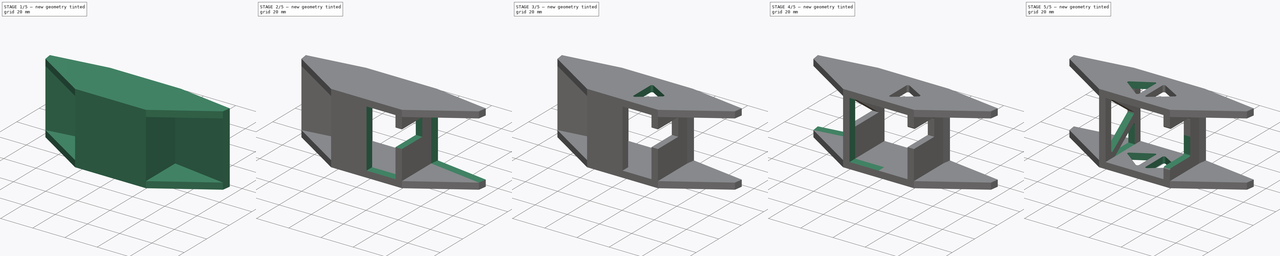
[diagram: build sequence overview — one tinted view per stage of 5, left to right]
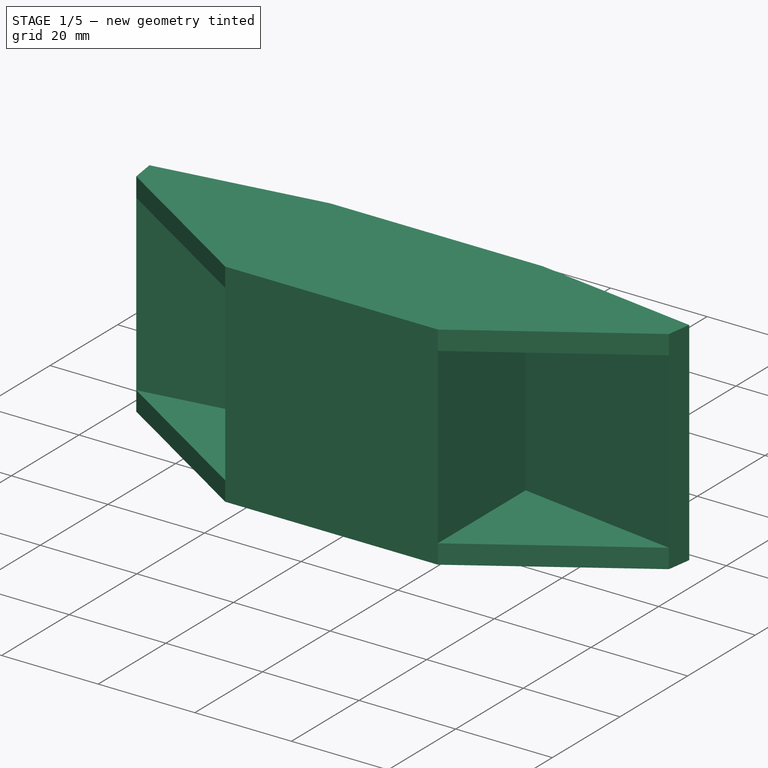
[diagram: stage 1 of 5 — iso view after this stage's code; geometry added in this stage tinted green]
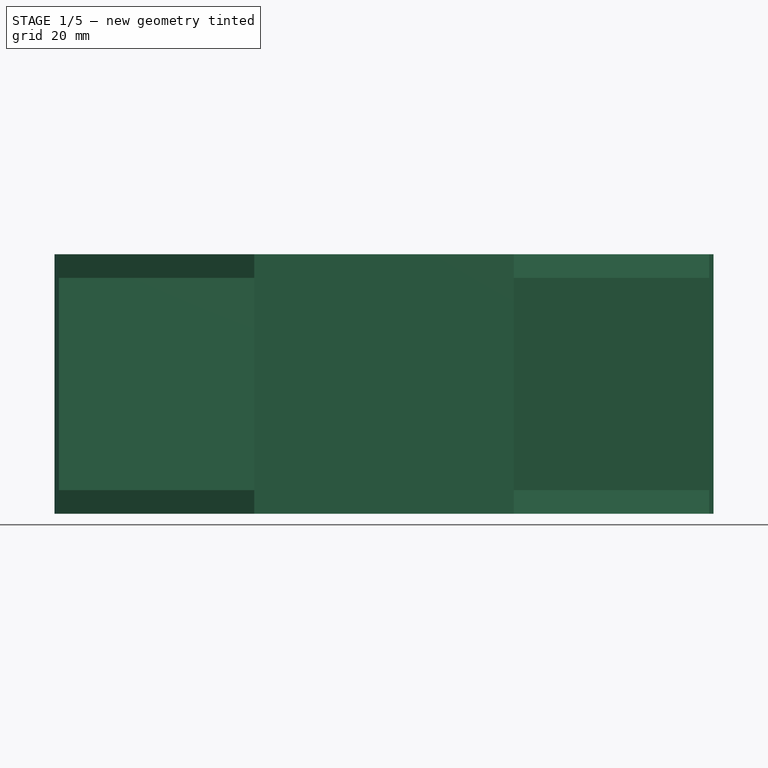
[diagram: stage 1 of 5 — front view after this stage's code; geometry added in this stage tinted green]
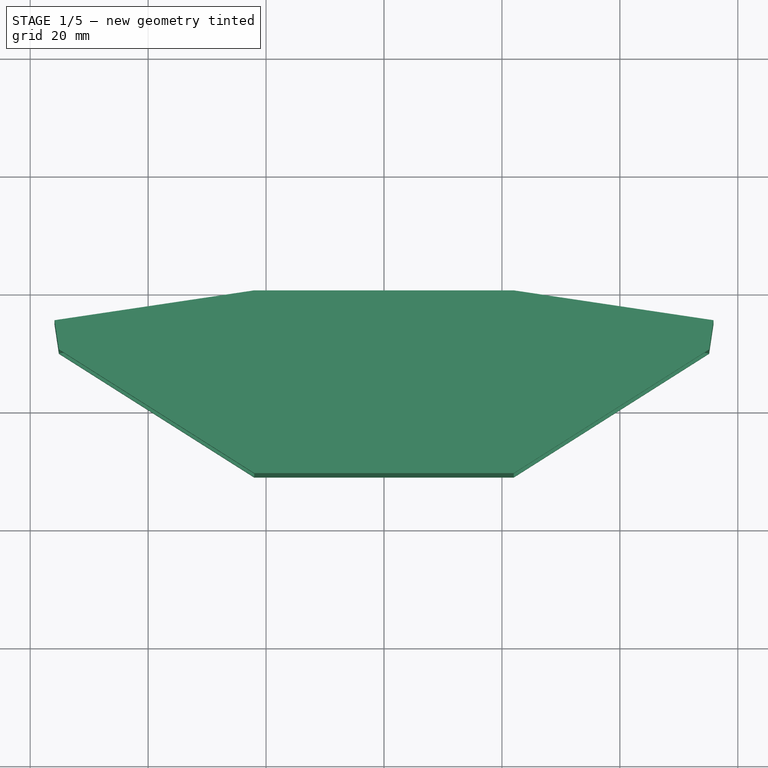
[diagram: stage 1 of 5 — top view after this stage's code; geometry added in this stage tinted green]
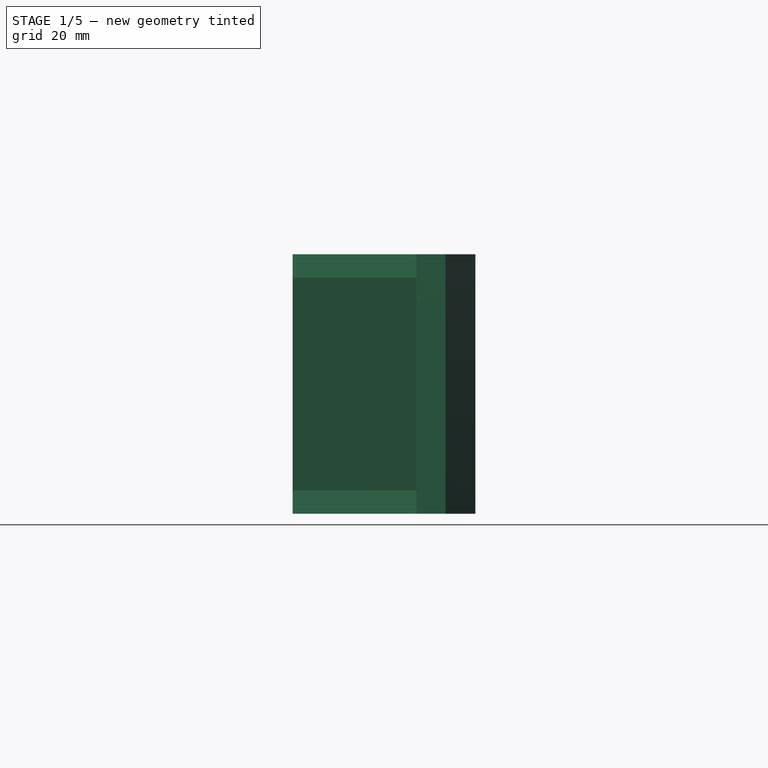
[diagram: stage 1 of 5 — right view after this stage's code; geometry added in this stage tinted green]
FCSTD DOCUMENT  (FreeCAD 0.20R29177 +426 (Git))
Label: midRowRack
License: All rights reserved
LicenseURL: http://en.wikipedia.org/wiki/All_rights_reserved
objects: Sketcher::SketchObject×10, PartDesign::Mirrored×8, PartDesign::Pocket×5, PartDesign::CoordinateSystem×4, PartDesign::Fillet×4, PartDesign::Pad×2, PartDesign::MultiTransform×2, Spreadsheet::Sheet×1, PartDesign::PolarPattern×1, PartDesign::Body×1
note: 48 computed .brp shape members not serialized (recipe doc carries the construction recipe); baked Part::Feature solids carry a one-line shape summary decoded from their .brp

FEATURE [Spreadsheet::Sheet] Spreadsheet  label="props"
  cells = A1=variable; B1=unit; C1=value; D1=min value; E1=typical value; F1=max value; A2=pan angle; B2=degree; C2(panAngle)=8.5; D2=0; A3=cell diameter; B3=mm; C3(cellDiam)=40; A4=side plate left width; B4=mm; C4(sidePlateLeftWidth)=18; E4==cellDiam / 2 - ribThick / 2; A5=side plate right (USB side) width; B5=mm; C5(sidePlateRightWidth)=15.5; E5=15.5; A6=center plate width; B6=mm; C6(centerPlateWidth)=36; E6==cellDiam - ribThick; A7=plate height; B7=mm; C7(plateHeight)=36; E7==cellDiam - ribThick; A8=rack thicnkess; B8=mm; C8(rackThick)=31; A9=plate thickness; B9=mm; C9(plateThick)=5; A10=rib thickness; B10=mm; C10(ribThick)=4; A11=usb extended thickness; B11=mm; C11(usbExtThick)=5.5; A12=usb extended length; B12=mm; C12(usbExtLength)=17; A13=usb thickness; B13=mm; C13(usbThick)=9; A14=usb width; B14=mm; C14(usbWidth)=22; A15=usb hole height; B15=mm; C15(usbHoleHeight)=13; D15==usbThick - usbExtThick + 1 + standoffLength - 1.5; A16=standoff length; B16=mm; C16(standoffLength)=8; A17=center camera back length; B17=mm; C17(cenCamBack)==rackThick - plateThick; D17==usbThick - usbExtThick + 1 + standoffLength - 1.5 + plateThick + usbExtLength * tan(panAngle) + 0.4
FEATURE [Sketcher::SketchObject] Sketch  label="baseSk"
  FullyConstrained = true
  MapMode = 5
  Support = -> [XY_Plane]
  expr: Constraints[19] = <<props>>.plateThick
  expr: Constraints[20] = <<props>>.plateThick
  expr: Constraints[21] = <<props>>.cenCamBack
  expr: Constraints[22] = <<props>>.cellDiam / 2 - <<props>>.ribThick / 2
  expr: Constraints[23] = <<props>>.ribThick
  expr: Constraints[24] = 90 - <<props>>.panAngle
  expr: Constraints[26] = <<props>>.sidePlateLeftWidth + <<props>>.sidePlateRightWidth
  sketch-geometry (9):
    g0: LineSegment StartX=0 StartY=-26 StartZ=0 EndX=0 EndY=-31 EndZ=0
    g1: LineSegment StartX=0 StartY=-31 StartZ=0 EndX=22 EndY=-31 EndZ=0
    g2: LineSegment StartX=22 StartY=-31 StartZ=0 EndX=22 EndY=-5.05553 EndZ=0
    g3: LineSegment StartX=22 StartY=-5.05553 StartZ=0 EndX=55.132 EndY=-10.0071 EndZ=0
    g4: LineSegment StartX=55.132 StartY=-10.0071 StartZ=0 EndX=55.8711 EndY=-5.06207 EndZ=0
    g5: LineSegment StartX=55.8711 StartY=-5.06207 StartZ=0 EndX=22 EndY=9e-16 EndZ=0
    g6: LineSegment StartX=22 StartY=9e-16 StartZ=0 EndX=18 EndY=9e-16 EndZ=0
    g7: LineSegment StartX=18 StartY=9e-16 StartZ=0 EndX=18 EndY=-26 EndZ=0
    g8: LineSegment StartX=18 StartY=-26 StartZ=0 EndX=0 EndY=-26 EndZ=0
  constraints (27):
    c: PointOnObject(g0,g-2)
    c: Vertical(g0)
    c: Coincident(g0,g1)
    c: Horizontal(g1)
    c: Coincident(g1,g2)
    c: Vertical(g2)
    c: Coincident(g2,g3)
    c: Coincident(g3,g4)
    c: Coincident(g4,g5)
    c: Coincident(g5,g6)
    c: PointOnObject(g6,g-1)
    c: Horizontal(g6)
    c: Coincident(g6,g7)
    c: Vertical(g7)
    c: Coincident(g7,g8)
    c: Coincident(g8,g0)
    c: Horizontal(g8)
    c: Perpendicular(g5,g4)
    c: Parallel(g5,g3)
    c: Distance(g0) = 5
    c: Distance(g4) = 5
    c: Distance(g7) = 26
    c: Distance(g8) = 18
    c: Distance(g2,g7) = 4
    c: Angle(g2,g5) = 1.42244
    c: Vertical(g2,g5)
    c: Distance(g3) = 33.5
FEATURE [PartDesign::Pad] Pad  label="base"
  Direction = (0,0,1)
  Length = 36
  Length2 = 10
  Midplane = true
  Profile = -> Sketch
  ReferenceAxis = -> Sketch [N_Axis]
  Type = 0
  expr: Length = <<props>>.plateHeight
FEATURE [Sketcher::SketchObject] Sketch001  label="roofBaseSk"
  ExternalGeometry = -> [Pad]
  FullyConstrained = true
  MapMode = 5
  Placement = pos=(0,0,18) rot=(0,0,1;0rad)
  Support = -> [Pad]
  sketch-geometry (6):
    g0: LineSegment StartX=0 StartY=0 StartZ=0 EndX=0 EndY=-31 EndZ=0
    g1: LineSegment StartX=0 StartY=-31 StartZ=0 EndX=22 EndY=-31 EndZ=0
    g2: LineSegment StartX=22 StartY=-31 StartZ=0 EndX=55.132 EndY=-10.0071 EndZ=0
    g3: LineSegment StartX=55.132 StartY=-10.0071 StartZ=0 EndX=55.8711 EndY=-5.06207 EndZ=0
    g4: LineSegment StartX=55.8711 StartY=-5.06207 StartZ=0 EndX=22 EndY=9e-16 EndZ=0
    g5: LineSegment StartX=22 StartY=9e-16 StartZ=0 EndX=0 EndY=0 EndZ=0
  constraints (12):
    c: Coincident(g-1,g0)
    c: Coincident(g0,g-3)
    c: Coincident(g0,g1)
    c: Coincident(g1,g-3)
    c: Coincident(g1,g2)
    c: Coincident(g2,g-4)
    c: Coincident(g2,g3)
    c: Coincident(g3,g-4)
    c: Coincident(g3,g4)
    c: Coincident(g4,g-5)
    c: Coincident(g4,g5)
    c: Coincident(g5,g0)
FEATURE [PartDesign::Pad] Pad001  label="roofBase"
  BaseFeature = -> Pad
  Direction = (0,0,1)
  Length = 4
  Length2 = 10
  Profile = -> Sketch001
  ReferenceAxis = -> Sketch001 [N_Axis]
  Type = 0
  expr: Length = <<props>>.ribThick
FEATURE [PartDesign::Mirrored] Mirrored  label="baseMirror"
  BaseFeature = -> Pad001
  MirrorPlane = -> YZ_Plane
  Originals = -> [Pad]
FEATURE [Sketcher::SketchObject] Sketch002  label="centerDatumSk"
  FullyConstrained = true
  MapMode = 5
  Placement = pos=(0,-26,0) rot=(0,0.707107,0.707107;3.14159rad)
  Support = -> [Pad]
  sketch-geometry (2):
    g0: LineSegment StartX=0 StartY=0 StartZ=0 EndX=-10 EndY=0 EndZ=0
    g1: LineSegment StartX=0 StartY=0 StartZ=0 EndX=0 EndY=-10 EndZ=0
  constraints (6):
    c: Coincident(g0,g-1)
    c: PointOnObject(g0,g-1)
    c: Coincident(g1,g0)
    c: Vertical(g1)
    c: Distance(g0) = 10
    c: Distance(g1) = 10
FEATURE [PartDesign::CoordinateSystem] midRackLCS
  AttacherType = Attacher::AttachEngine3D
FEATURE [Sketcher::SketchObject] Sketch003  label="sideDatum1Sk"
  ExternalGeometry = -> [Pad]
  FullyConstrained = true
  MapMode = 5
  Placement = pos=(0.480648,3.21609,0) rot=(0.052475,0.706133,0.706133;3.03674rad)
  Support = -> [Pad]
  expr: Constraints[4] = <<props>>.sidePlateLeftWidth
  sketch-geometry (2):
    g0: LineSegment StartX=-40.5056 StartY=0 StartZ=0 EndX=-40.5056 EndY=-10 EndZ=0
    g1: LineSegment StartX=-40.5056 StartY=0 StartZ=0 EndX=-50.5056 EndY=0 EndZ=0
  constraints (7):
    c: PointOnObject(g0,g-1)
    c: Vertical(g0)
    c: Coincident(g1,g0)
    c: Horizontal(g1)
    c: Distance(g0,g-3) = 18
    c: Distance(g0) = 10
    c: Distance(g1) = 10
FEATURE [PartDesign::CoordinateSystem] centerPlateLCS
  AttacherType = Attacher::AttachEngine3D
  MapMode = 49
  Placement = pos=(0,-26,0) rot=(-1,0,0;1.5708rad)
  Support = -> [Sketch002]
FEATURE [PartDesign::CoordinateSystem] sidePlate1LCS
  AttacherType = Attacher::AttachEngine3D
  MapMode = 49
  Placement = pos=(40.5413,-2.77102,-6e-16) rot=(-0.994523,0.073906,-0.073906;1.57629rad)
  Support = -> [Sketch003]
FEATURE [Sketcher::SketchObject] Sketch005  label="centerPlateSlotSk"
  FullyConstrained = true
  MapMode = 5
  Placement = pos=(0,-31,0) rot=(1,0,0;1.5708rad)
  Support = -> [Pad]
  expr: Constraints[10] = <<props>>.centerPlateWidth / 2
  expr: Constraints[9] = <<props>>.plateHeight
  sketch-geometry (4):
    g0: LineSegment StartX=0 StartY=-18 StartZ=0 EndX=18 EndY=-18 EndZ=0
    g1: LineSegment StartX=18 StartY=-18 StartZ=0 EndX=18 EndY=18 EndZ=0
    g2: LineSegment StartX=18 StartY=18 StartZ=0 EndX=0 EndY=18 EndZ=0
    g3: LineSegment StartX=0 StartY=18 StartZ=0 EndX=0 EndY=-18 EndZ=0
  constraints (11):
    c: Coincident(g0,g1)
    c: Coincident(g1,g2)
    c: Coincident(g2,g3)
    c: Coincident(g3,g0)
    c: Horizontal(g0)
    c: Horizontal(g2)
    c: Vertical(g1)
    c: PointOnObject(g0,g-2)
    c: Symmetric(g0,g2,g-1)
    c: Distance(g3) = 36
    c: Distance(g0) = 18
FEATURE [Sketcher::SketchObject] Sketch006  label="sidePlateSlotSk"
  ExternalGeometry = -> [Pad]
  FullyConstrained = true
  MapMode = 5
  Placement = pos=(-0.258399,-1.72899,0) rot=(0.994523,-0.073906,-0.073906;1.57629rad)
  Support = -> [Pad]
  expr: Constraints[10] = <<props>>.sidePlateLeftWidth + <<props>>.sidePlateRightWidth
  expr: Constraints[9] = <<props>>.plateHeight
  sketch-geometry (4):
    g0: LineSegment StartX=22.5056 StartY=18 StartZ=0 EndX=56.0056 EndY=18 EndZ=0
    g1: LineSegment StartX=56.0056 StartY=18 StartZ=0 EndX=56.0056 EndY=-18 EndZ=0
    g2: LineSegment StartX=56.0056 StartY=-18 StartZ=0 EndX=22.5056 EndY=-18 EndZ=0
    g3: LineSegment StartX=22.5056 StartY=-18 StartZ=0 EndX=22.5056 EndY=18 EndZ=0
  constraints (11):
    c: Coincident(g0,g1)
    c: Coincident(g1,g2)
    c: Coincident(g2,g3)
    c: Coincident(g3,g0)
    c: Horizontal(g0)
    c: Horizontal(g2)
    c: Vertical(g1)
    c: PointOnObject(g0,g-3)
    c: Symmetric(g2,g0,g-1)
    c: Distance(g1) = 36
    c: Distance(g0) = 33.5
FEATURE [PartDesign::Mirrored] Mirrored001
  MirrorPlane = -> XY_Plane
FEATURE [PartDesign::Mirrored] Mirrored002
  MirrorPlane = -> YZ_Plane
FEATURE [PartDesign::MultiTransform] MultiTransform  label="roofBaseMulti"
  BaseFeature = -> Mirrored
  Originals = -> [Pad001]
  Transformations = -> [Mirrored001,Mirrored002]
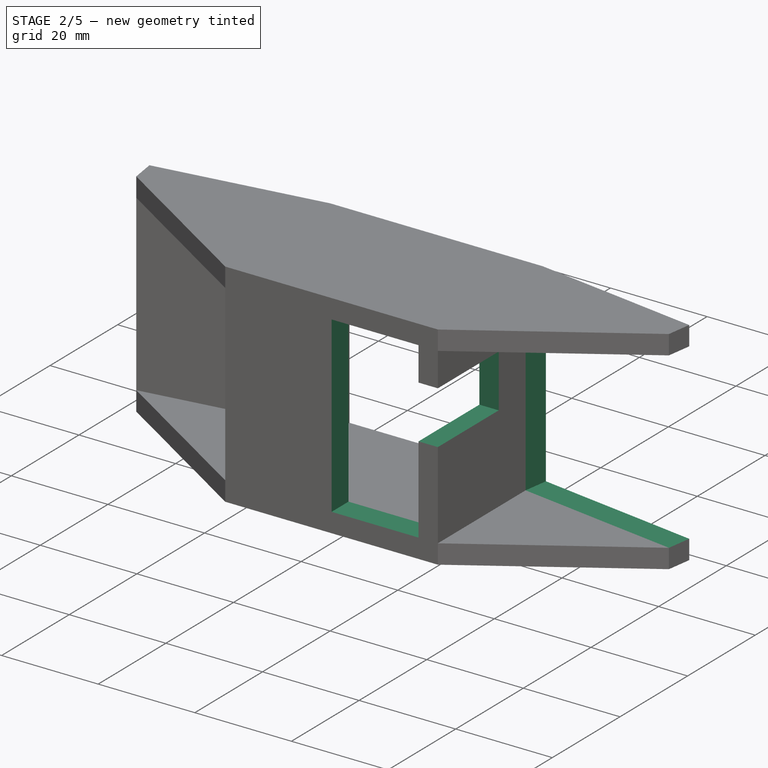
[diagram: stage 2 of 5 — iso view after this stage's code; geometry added in this stage tinted green]
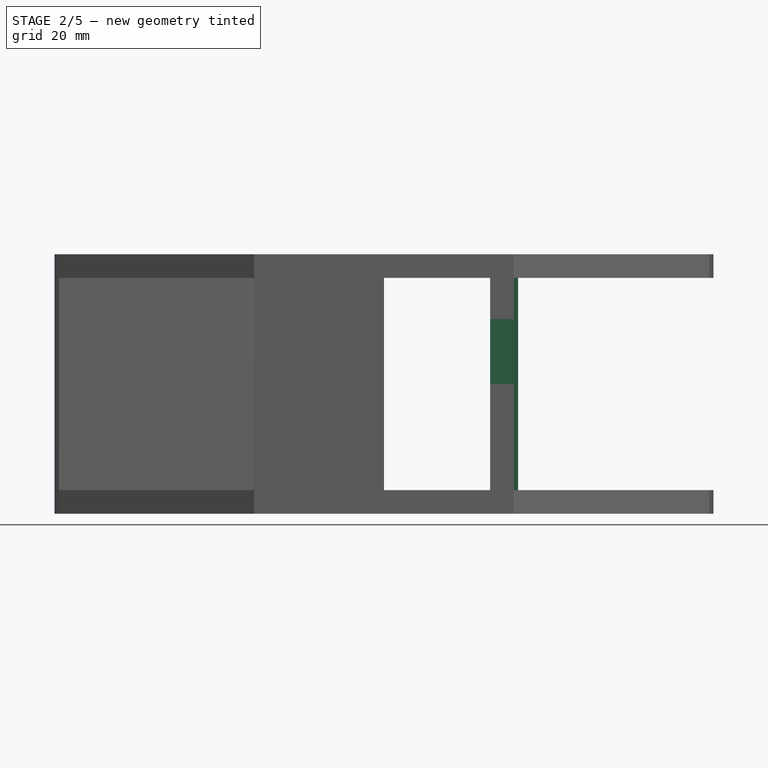
[diagram: stage 2 of 5 — front view after this stage's code; geometry added in this stage tinted green]
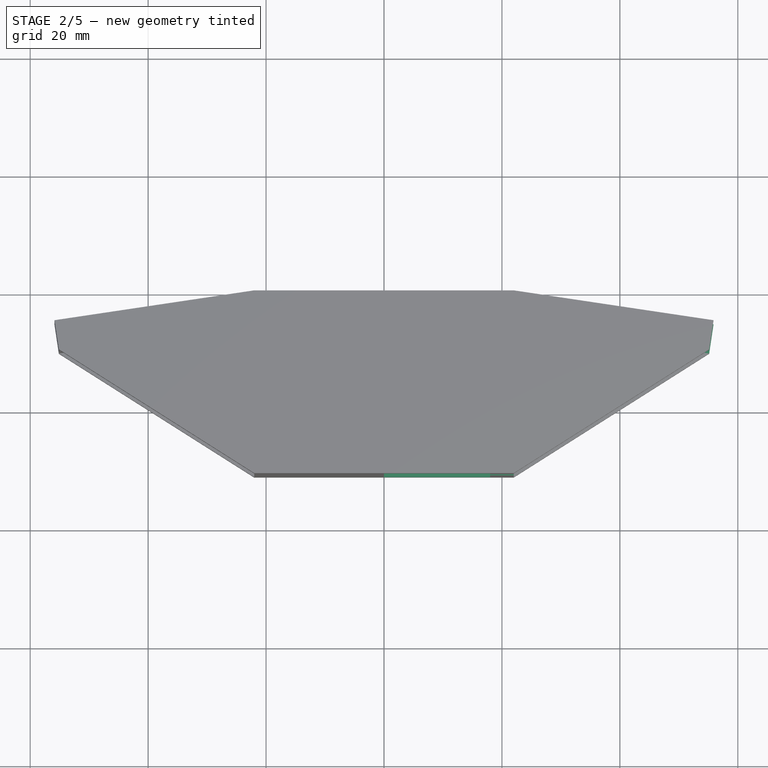
[diagram: stage 2 of 5 — top view after this stage's code; geometry added in this stage tinted green]
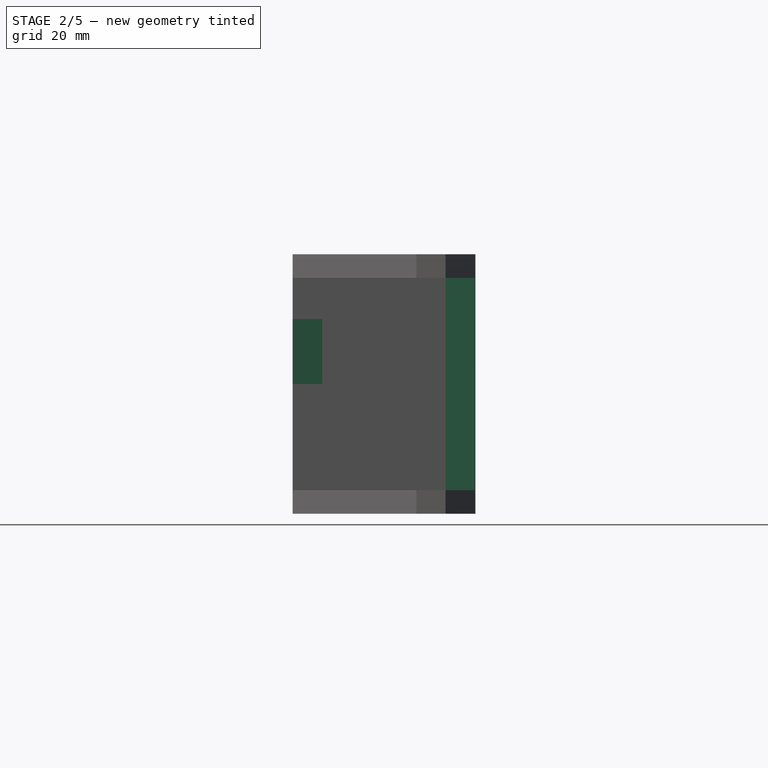
[diagram: stage 2 of 5 — right view after this stage's code; geometry added in this stage tinted green]
FEATURE [Sketcher::SketchObject] Sketch004  label="sideDatum2Sk"
  ExternalGeometry = -> [Mirrored]
  FullyConstrained = true
  MapMode = 5
  Placement = pos=(-0.480648,3.21609,-1e-16) rot=(-0.052475,0.706133,0.706133;3.24645rad)
  Support = -> [MultiTransform]
  expr: Constraints[6] = <<props>>.sidePlateLeftWidth
  sketch-geometry (2):
    g0: LineSegment StartX=40.5056 StartY=0 StartZ=0 EndX=40.5056 EndY=10 EndZ=0
    g1: LineSegment StartX=40.5056 StartY=0 StartZ=0 EndX=50.5056 EndY=0 EndZ=0
  constraints (7):
    c: PointOnObject(g0,g-1)
    c: Vertical(g0)
    c: Coincident(g1,g0)
    c: Horizontal(g1)
    c: Distance(g1) = 10
    c: Distance(g0) = 10
    c: Distance(g0,g-3) = 18
FEATURE [PartDesign::CoordinateSystem] sidePlate2LCS
  AttacherType = Attacher::AttachEngine3D
  MapMode = 49
  Placement = pos=(-40.5413,-2.77102,-7e-16) rot=(-0.052475,0.706133,0.706133;3.24645rad)
  Support = -> [Sketch004]
FEATURE [PartDesign::Pocket] Pocket  label="centerPlateSlot"
  BaseFeature = -> MultiTransform
  Direction = (0,1,-2e-16)
  Length = 5
  Length2 = 5
  Profile = -> Sketch005
  ReferenceAxis = -> Sketch005 [N_Axis]
  Type = 2
FEATURE [PartDesign::Pocket] Pocket001  label="sidePlateSlot"
  BaseFeature = -> Pocket
  Direction = (0.147809,0.989016,2e-16)
  Length = 5
  Length2 = 5
  Profile = -> Sketch006
  ReferenceAxis = -> Sketch006 [N_Axis]
  Type = 2
FEATURE [Sketcher::SketchObject] Sketch007  label="ribLightSk"
  ExternalGeometry = -> [Mirrored]
  FullyConstrained = true
  MapMode = 5
  Placement = pos=(-22,4.8e-15,-4.8e-15) rot=(-0.57735,0.57735,0.57735;4.18879rad)
  Support = -> [Mirrored]
  expr: Constraints[13] = <<props>>.ribThick / 2
  expr: Constraints[14] = <<props>>.ribThick / 2
  sketch-geometry (7):
    g0: LineSegment StartX=26 StartY=15.5112 StartZ=0 EndX=5.05553 EndY=0 EndZ=0
    g1: LineSegment StartX=5.05553 StartY=0 StartZ=0 EndX=26 EndY=0 EndZ=0
    g2: LineSegment StartX=26 StartY=0 StartZ=0 EndX=26 EndY=15.5112 EndZ=0
    g3: LineSegment StartX=26 StartY=18 StartZ=0 EndX=1.69503 EndY=0 EndZ=0
    g4: LineSegment StartX=5.05553 StartY=18 StartZ=0 EndX=22.6395 EndY=18 EndZ=0
    g5: LineSegment StartX=22.6395 StartY=18 StartZ=0 EndX=5.05553 EndY=4.97751 EndZ=0
    g6: LineSegment StartX=5.05553 StartY=4.97751 StartZ=0 EndX=5.05553 EndY=18 EndZ=0
  constraints (20):
    c: Coincident(g0,g1)
    c: Horizontal(g1)
    c: Coincident(g1,g2)
    c: Coincident(g2,g0)
    c: Vertical(g2)
    c: PointOnObject(g1,g-1)
    c: Horizontal(g4)
    c: Coincident(g4,g5)
    c: Coincident(g5,g6)
    c: Coincident(g6,g4)
    c: Vertical(g6)
    c: Parallel(g5,g3)
    c: Parallel(g0,g3)
    c: Distance(g3,g0) = 2
    c: Distance(g3,g5) = 2
    c: PointOnObject(g3,g-1)
    c: Coincident(g3,g-4)
    c: PointOnObject(g1,g-4)
    c: Coincident(g4,g-3)
    c: PointOnObject(g0,g-3)
FEATURE [Sketcher::SketchObject] Sketch008  label="roofLightSk"
  ExternalGeometry = -> [Pad001]
  FullyConstrained = true
  MapMode = 5
  Placement = pos=(0,0,22) rot=(0,0,1;0rad)
  Support = -> [Pad001]
  expr: Constraints[5] = <<props>>.ribThick / 2
  expr: Constraints[6] = <<props>>.plateThick * 1.5
  expr: Constraints[8] = <<props>>.cellDiam / 2 - <<props>>.ribThick
  sketch-geometry (3):
    g0: LineSegment StartX=2 StartY=-7.5 StartZ=0 EndX=2 EndY=-26 EndZ=0
    g1: LineSegment StartX=2 StartY=-26 StartZ=0 EndX=15.8564 EndY=-15.5 EndZ=0
    g2: LineSegment StartX=15.8564 StartY=-15.5 StartZ=0 EndX=2 EndY=-7.5 EndZ=0
  constraints (9):
    c: Vertical(g0)
    c: Coincident(g0,g1)
    c: Coincident(g1,g2)
    c: Coincident(g2,g0)
    c: Angle(g0,g2) = 1.0472
    c: DistanceX(g-1,g0) = 2
    c: DistanceY(g0,g-1) = 7.5
    c: PointOnObject(g0,g-3)
    c: Distance(g2) = 16
FEATURE [PartDesign::Mirrored] Mirrored005
  MirrorPlane = -> YZ_Plane
FEATURE [PartDesign::Mirrored] Mirrored006
  MirrorPlane = -> XY_Plane
FEATURE [Sketcher::SketchObject] Sketch009  label="usbHoleSk"
  ExternalGeometry = -> [Pad]
  FullyConstrained = true
  MapMode = 5
  Placement = pos=(22,0,0) rot=(0.57735,0.57735,0.57735;2.0944rad)
  Support = -> [Pad]
  expr: Constraints[10] = <<props>>.usbWidth / 2
  expr: Constraints[11] = <<props>>.usbHoleHeight
  sketch-geometry (4):
    g0: LineSegment StartX=-31 StartY=0 StartZ=0 EndX=-13 EndY=0 EndZ=0
    g1: LineSegment StartX=-13 StartY=0 StartZ=0 EndX=-13 EndY=11 EndZ=0
    g2: LineSegment StartX=-13 StartY=11 StartZ=0 EndX=-31 EndY=11 EndZ=0
    g3: LineSegment StartX=-31 StartY=11 StartZ=0 EndX=-31 EndY=0 EndZ=0
  constraints (12):
    c: Coincident(g0,g1)
    c: Coincident(g1,g2)
    c: Coincident(g2,g3)
    c: Coincident(g3,g0)
    c: Horizontal(g0)
    c: Horizontal(g2)
    c: Vertical(g1)
    c: Vertical(g3)
    c: PointOnObject(g0,g-1)
    c: PointOnObject(g0,g-4)
    c: Distance(g3) = 11
    c: Distance(g0,g-3) = 13
FEATURE [PartDesign::Pocket] Pocket004  label="usbHole"
  BaseFeature = -> Pocket001
  Direction = (-1,0,0)
  Length = 5
  Length2 = 5
  Profile = -> Sketch009
  ReferenceAxis = -> Sketch009 [N_Axis]
  Type = 2
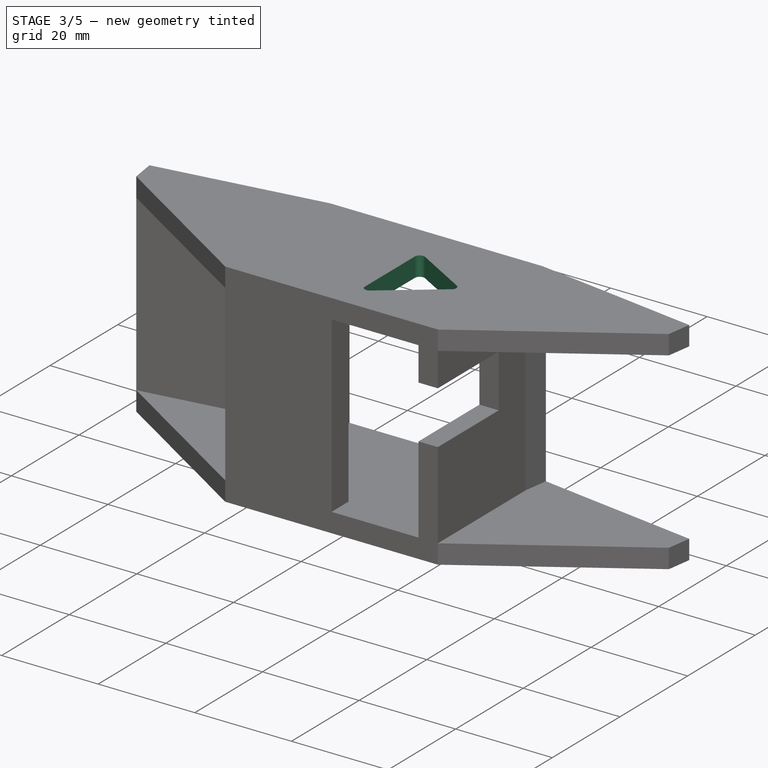
[diagram: stage 3 of 5 — iso view after this stage's code; geometry added in this stage tinted green]
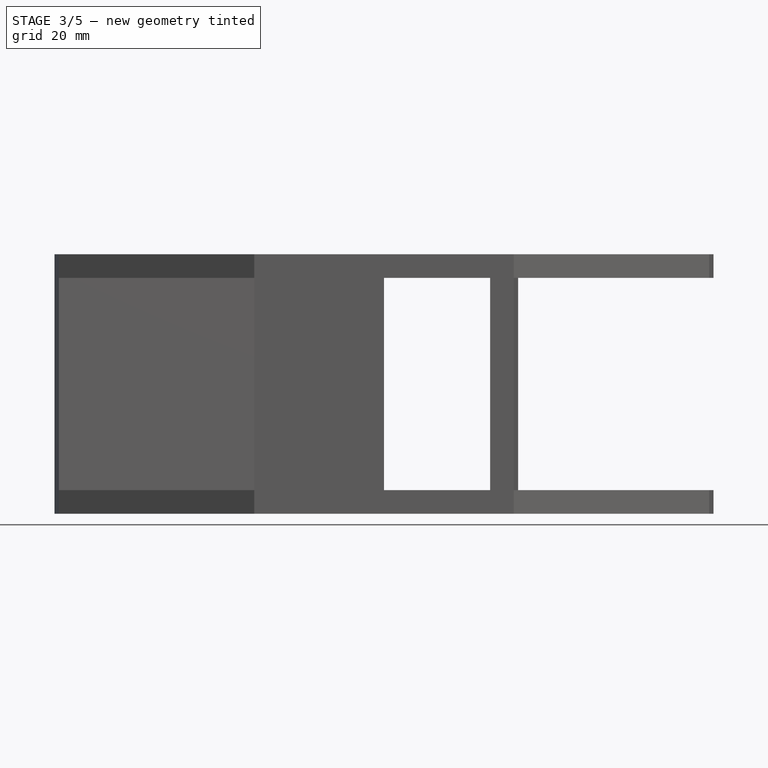
[diagram: stage 3 of 5 — front view after this stage's code; geometry added in this stage tinted green]
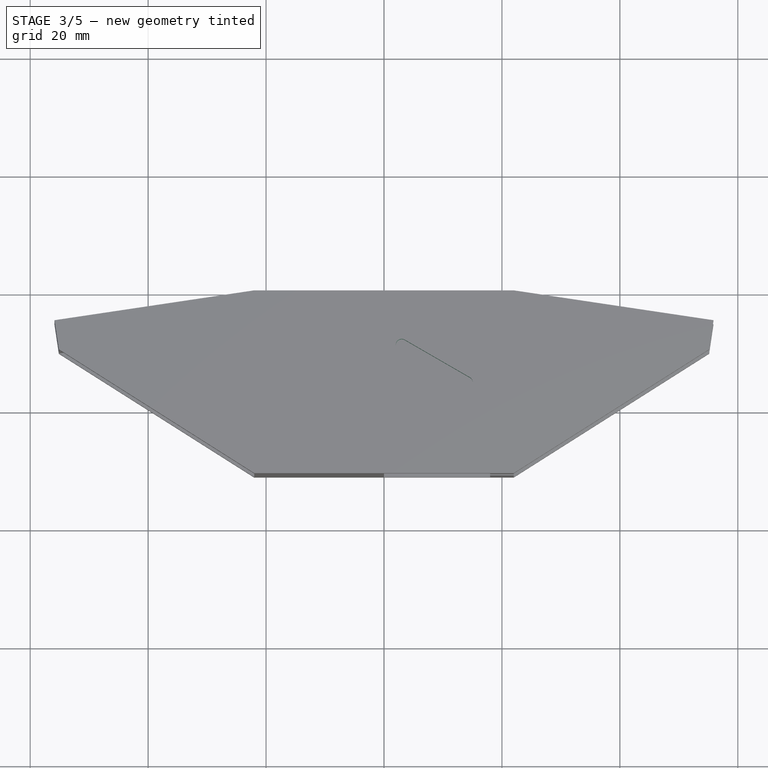
[diagram: stage 3 of 5 — top view after this stage's code; geometry added in this stage tinted green]
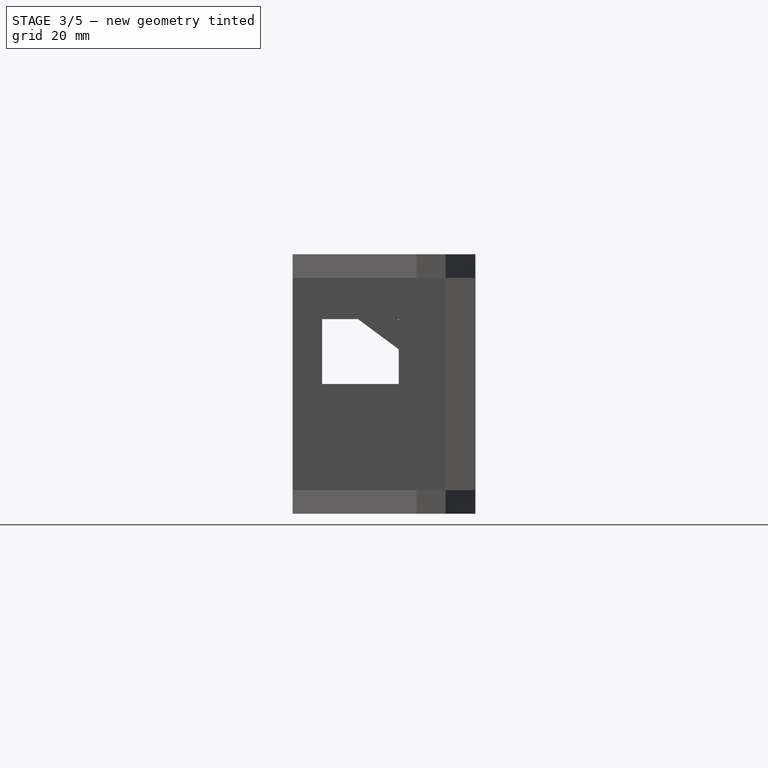
[diagram: stage 3 of 5 — right view after this stage's code; geometry added in this stage tinted green]
FEATURE [PartDesign::Pocket] Pocket002  label="ribLight"
  BaseFeature = -> Pocket004
  Direction = (1,-2e-16,2e-16)
  Length = 5
  Length2 = 5
  Profile = -> Sketch007
  ReferenceAxis = -> Sketch007 [N_Axis]
  Type = 2
FEATURE [PartDesign::Pocket] Pocket003  label="roofLight"
  BaseFeature = -> Pocket002
  Direction = (0,0,-1)
  Length = 5
  Length2 = 5
  Profile = -> Sketch008
  ReferenceAxis = -> Sketch008 [N_Axis]
  Type = 2
FEATURE [PartDesign::Fillet] Fillet001  label="roofFillet"
  Base = -> Pocket003 [Edge62,Edge60,Edge59]
  BaseFeature = -> Pocket003
  Radius = 1
  SupportTransform = false
  UseAllEdges = false
FEATURE [PartDesign::Fillet] Fillet  label="ribFillet"
  Base = -> Fillet001 [Edge124]
  BaseFeature = -> Fillet001
  Radius = 1
  SupportTransform = false
  UseAllEdges = false
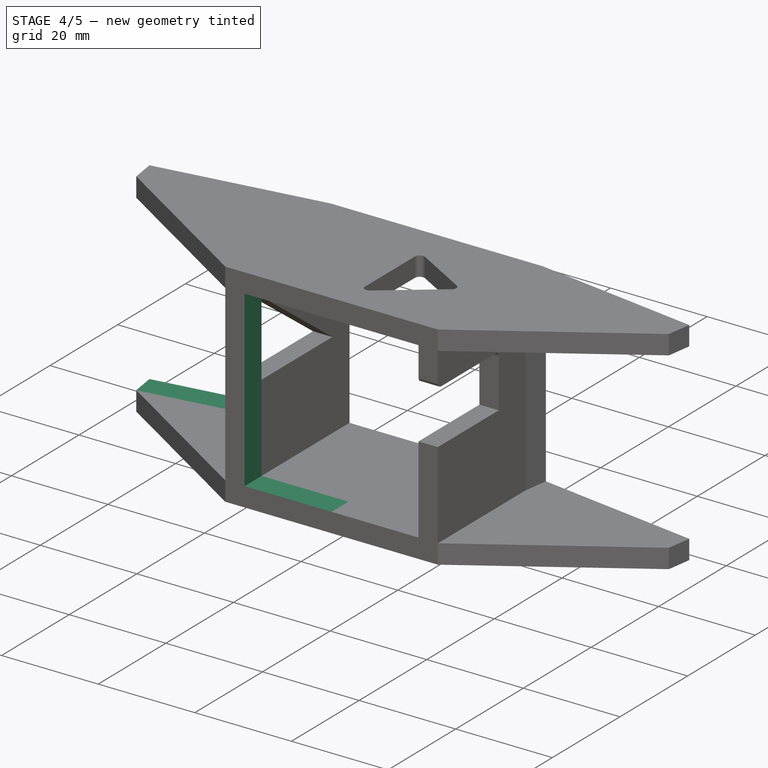
[diagram: stage 4 of 5 — iso view after this stage's code; geometry added in this stage tinted green]
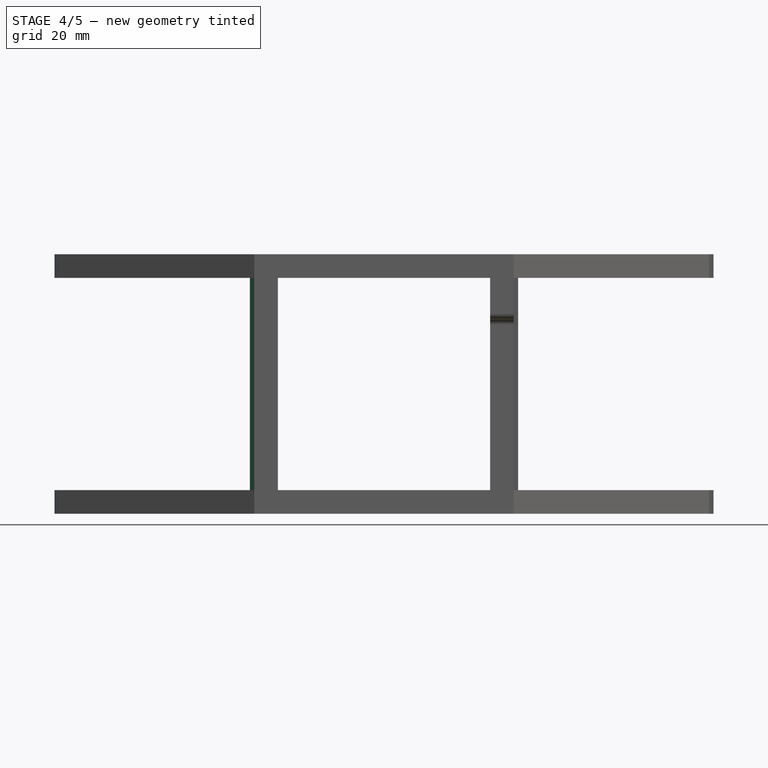
[diagram: stage 4 of 5 — front view after this stage's code; geometry added in this stage tinted green]
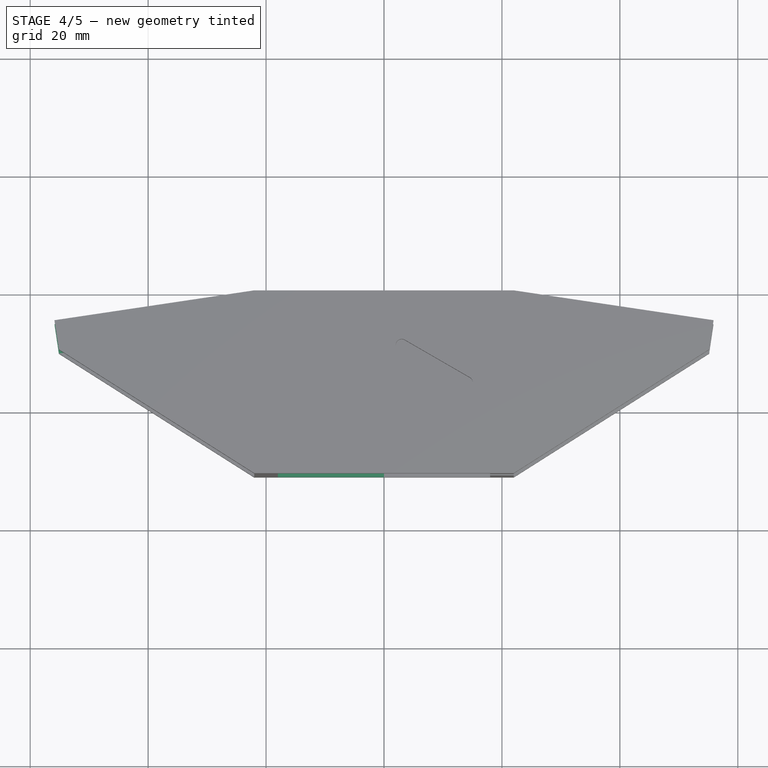
[diagram: stage 4 of 5 — top view after this stage's code; geometry added in this stage tinted green]
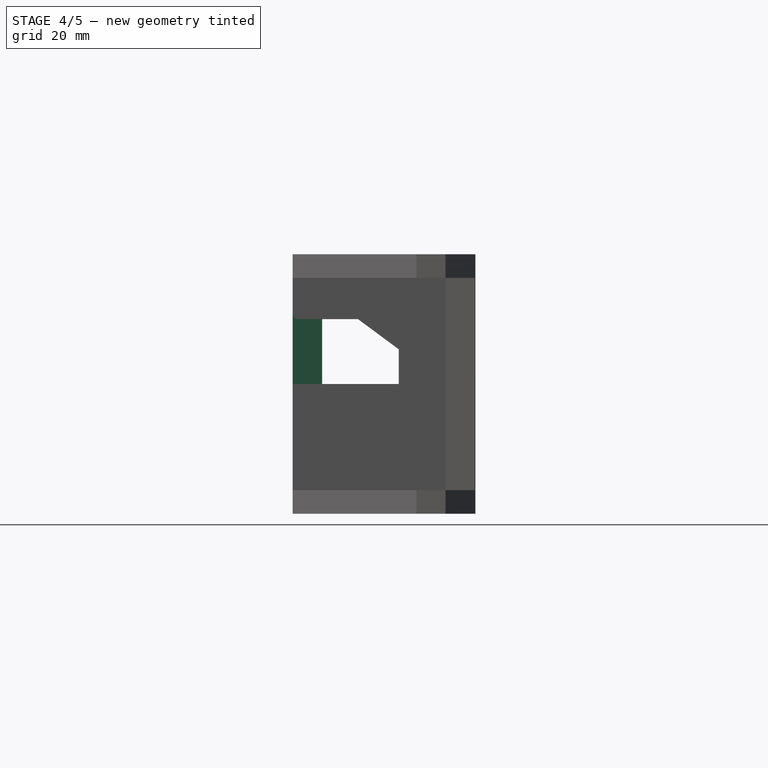
[diagram: stage 4 of 5 — right view after this stage's code; geometry added in this stage tinted green]
FEATURE [PartDesign::Fillet] Fillet002  label="usbHoleFillet"
  Base = -> Fillet [Edge140,Edge142]
  BaseFeature = -> Fillet
  Radius = 1
  SupportTransform = false
  UseAllEdges = false
FEATURE [PartDesign::Mirrored] Mirrored003  label="centerPlateSlotMirror"
  BaseFeature = -> Fillet002
  MirrorPlane = -> YZ_Plane
  Originals = -> [Pocket]
FEATURE [PartDesign::PolarPattern] PolarPattern  label="sidePlateSlotPolar"
  Angle = 360
  Axis = -> Y_Axis
  BaseFeature = -> Mirrored003
  Occurrences = 2
  Originals = -> [Pocket001]
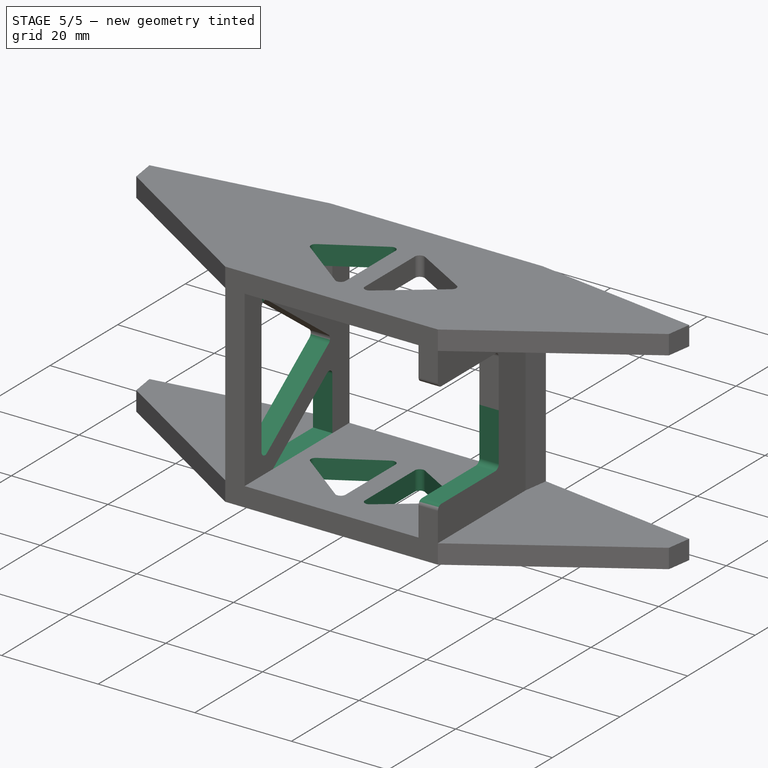
[diagram: stage 5 of 5 — iso view after this stage's code; geometry added in this stage tinted green]
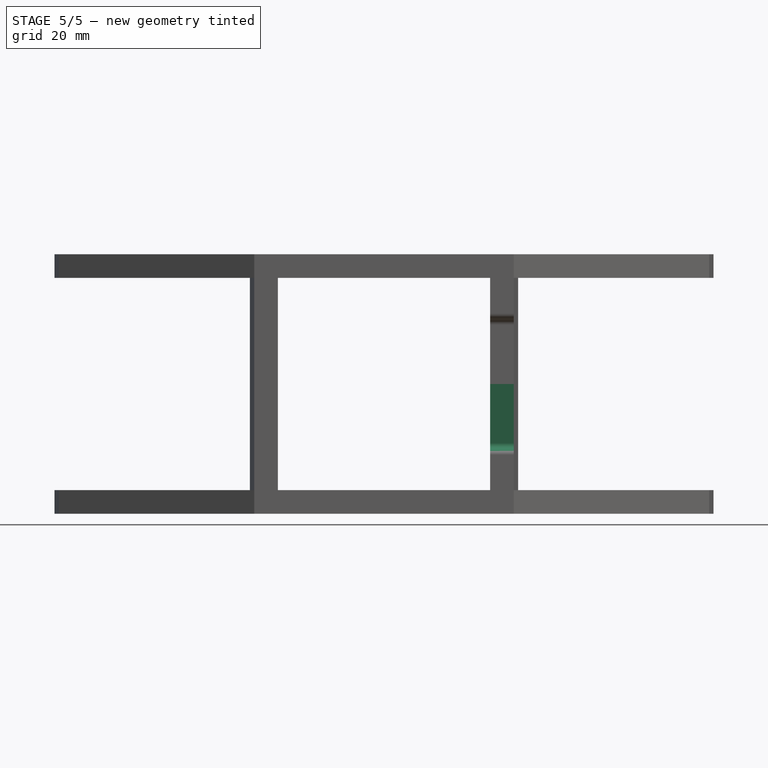
[diagram: stage 5 of 5 — front view after this stage's code; geometry added in this stage tinted green]
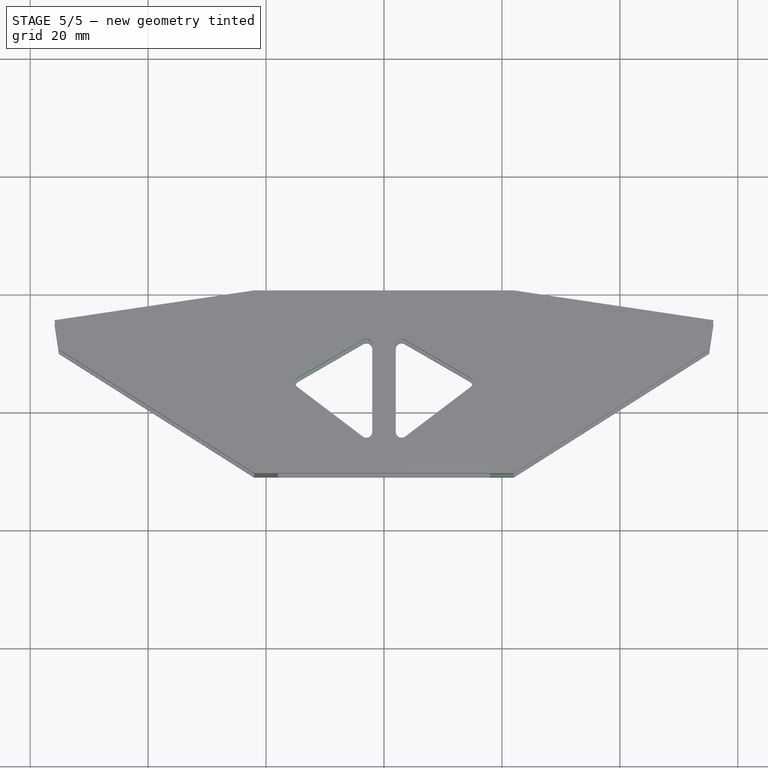
[diagram: stage 5 of 5 — top view after this stage's code; geometry added in this stage tinted green]
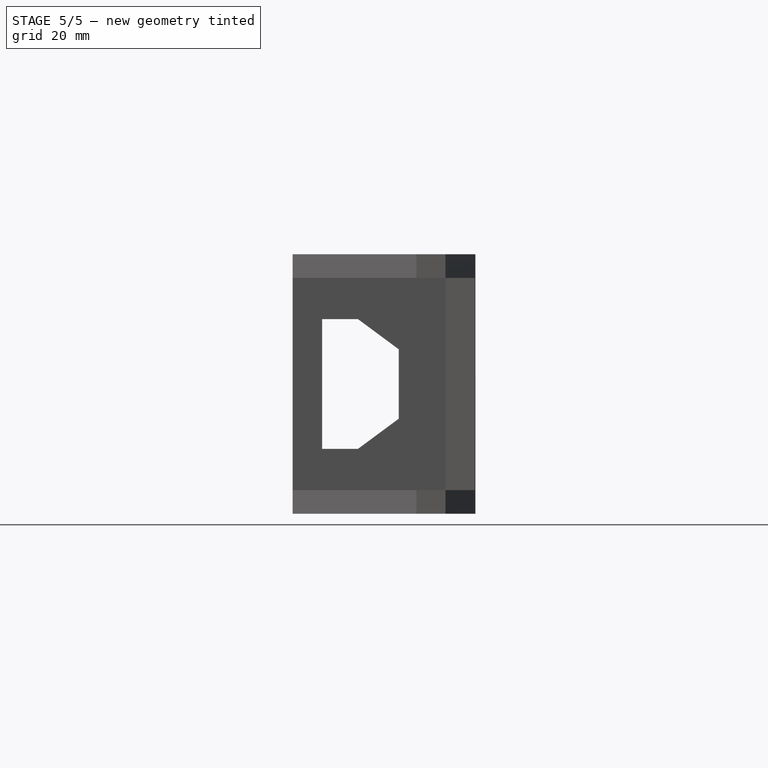
[diagram: stage 5 of 5 — right view after this stage's code; geometry added in this stage tinted green]
FEATURE [PartDesign::Mirrored] Mirrored007  label="usbHoleMirror"
  BaseFeature = -> PolarPattern
  MirrorPlane = -> XY_Plane
  Originals = -> [Pocket004,Fillet002]
FEATURE [PartDesign::Mirrored] Mirrored004  label="ribLightMirror"
  BaseFeature = -> Mirrored007
  MirrorPlane = -> XY_Plane
  Originals = -> [Pocket002,Fillet]
FEATURE [PartDesign::MultiTransform] MultiTransform001  label="roofLightMirror"
  BaseFeature = -> Mirrored004
  Originals = -> [Pocket003,Fillet001]
  Transformations = -> [Mirrored005,Mirrored006]
FEATURE [PartDesign::Fillet] Fillet003  label="postFillet"
  Base = -> MultiTransform001 [Edge256,Edge257,Edge259]
  BaseFeature = -> MultiTransform001
  Radius = 1
  SupportTransform = false
  UseAllEdges = false
FEATURE [PartDesign::Body] Body  label="midRowRack"
  Group = -> [midRackLCS,Sketch,Pad,Sketch005,Sketch006,Sketch002,Sketch003,Sketch009,Sketch007,Sketch001,Pad001,Sketch008,Mirrored,MultiTransform,Sketch004,centerPlateLCS,sidePlate1LCS,sidePlate2LCS,Pocket,Pocket001,Pocket004,Mirrored001,Mirrored002,Pocket002,Pocket003,Fillet001,Fillet,Fillet002,Mirrored003,PolarPattern,Mirrored007,Mirrored004,MultiTransform001,Mirrored005,Mirrored006,Fillet003]
  Origin = -> Origin
  Tip = -> Fillet003
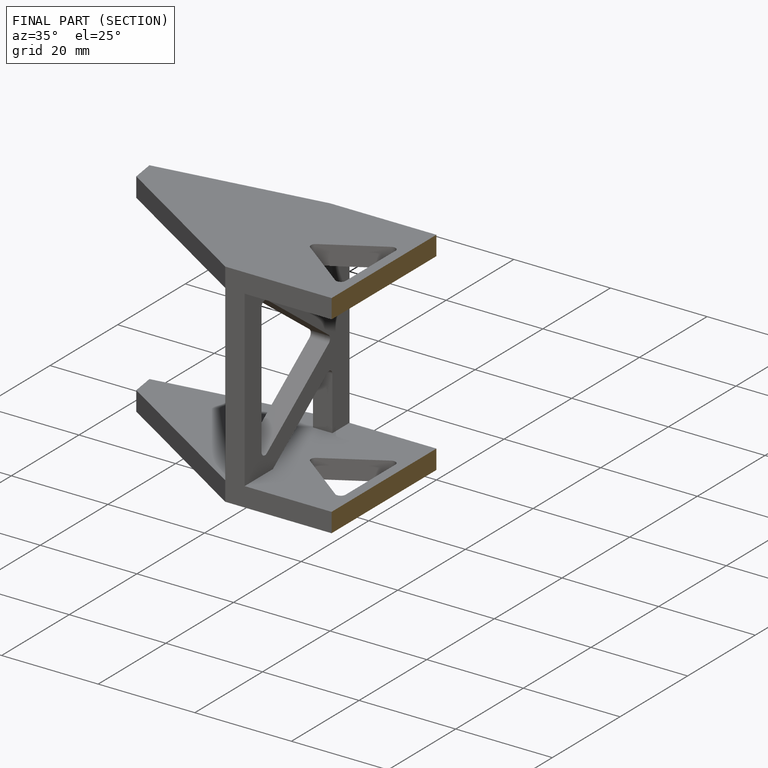
[diagram: finished part — half-section view (interior)]
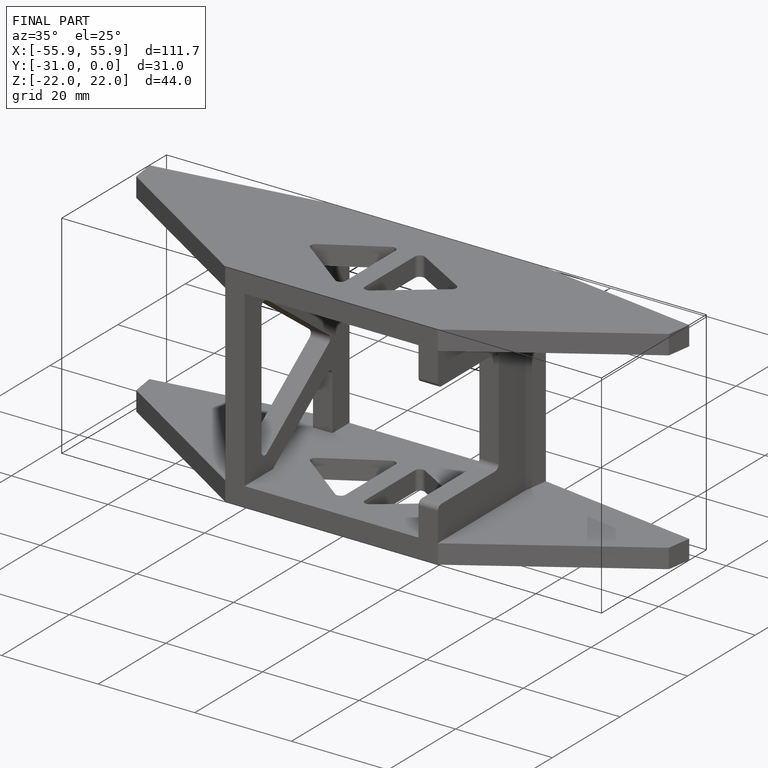
[diagram: finished part — iso view with bounding-box wireframe]
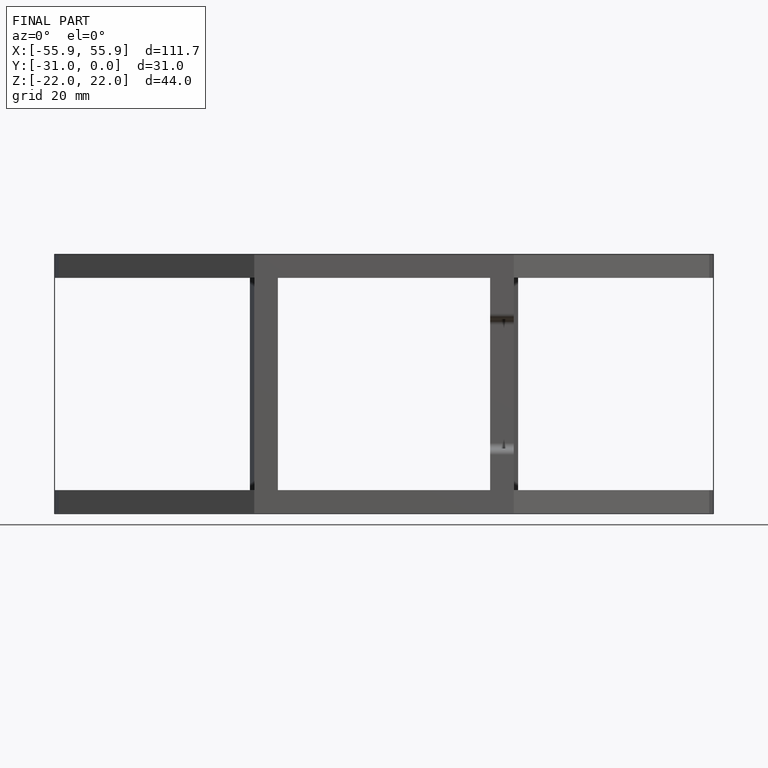
[diagram: finished part — front view with bounding-box wireframe]
